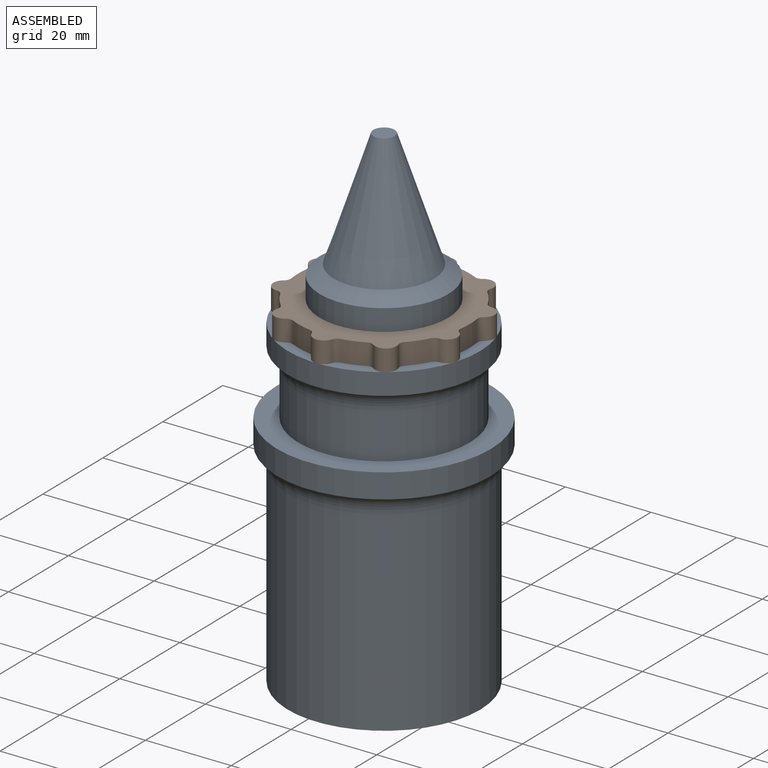
[diagram: assembled view]
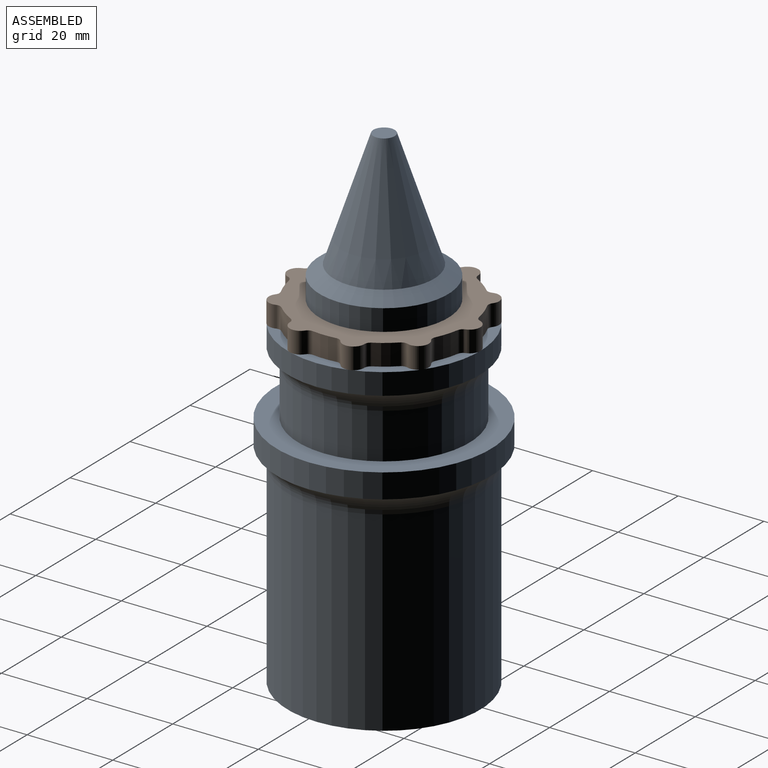
[diagram: assembled view, second angle]
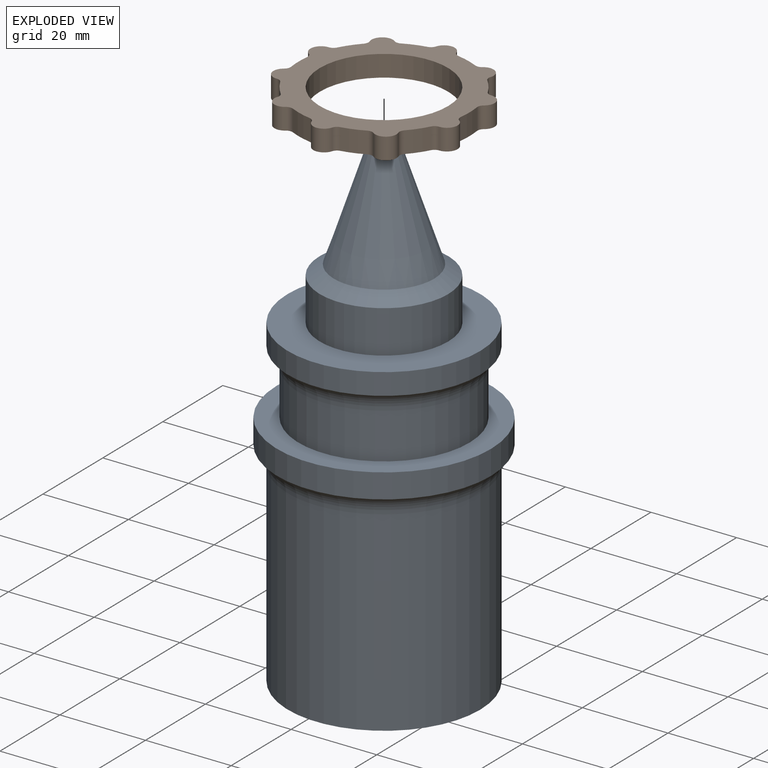
[diagram: exploded view]
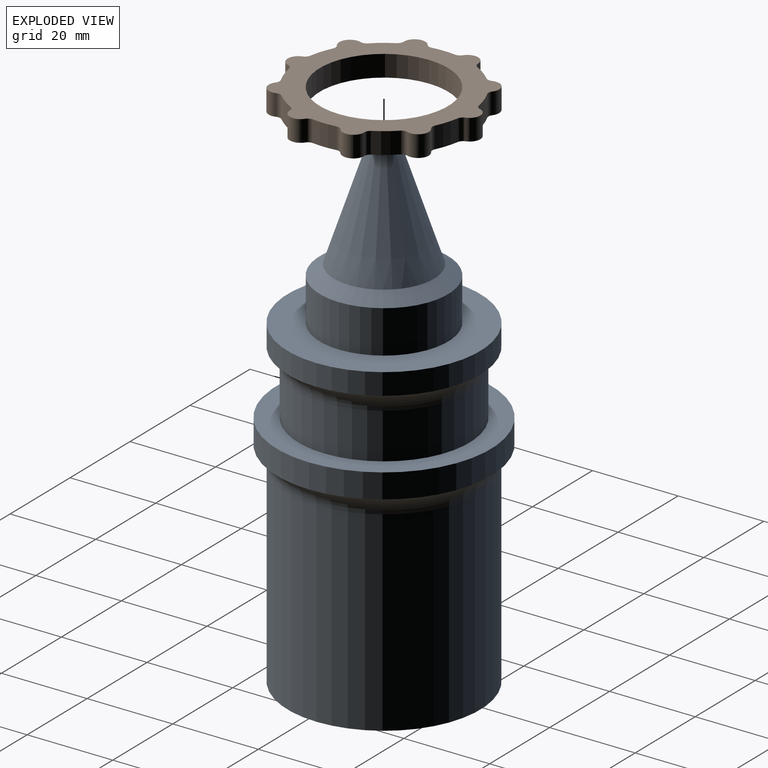
[diagram: exploded view, second angle]
ASSEMBLY  parts=2 mates=2
PART A: 22 faces, bbox 59.5x59.5x115.7 mm
  f0: cylinder r=25mm len=50mm, axis (0,0,-1), area 895.4mm2, adj f1,f12
  f1: plane 50x50mm, normal (0,0,1), area 706.9mm2, adj f0,f2
  f2: cylinder r=20mm len=40mm, axis (0,0,-1), area 1340.8mm2, adj f1,f5
  f3: cylinder r=22.5mm len=45mm, axis (0,0,-1), area 706.9mm2, adj f4,f5
  f4: plane 45x45mm, normal (0,0,1), area 883.6mm2, adj f3,f6
  f5: torus R=25mm, axis (0,0,1), area 686.4mm2, adj f2,f3
  f6: cylinder r=15mm len=30mm, axis (0,0,-1), area 942.5mm2, adj f4,f11
  f7: plane 5x5mm, normal (0,0,1), area 19.6mm2, adj f8
  f8: cone r=12.5mm half-angle=18.4deg, axis (0,0,-1), area 1300mm2, adj f7,f11
  f9: cylinder r=22.5mm len=45.67mm, axis (0,0,1), area 6456.4mm2, adj f10,f12
  f10: plane 45x45mm, normal (0,0,-1), area 1099.6mm2, adj f9,f18
  f11: cone r=11.71mm half-angle=54.2deg, axis (0,0,-1), area 340.4mm2, adj f6,f8
  f12: torus R=27.5mm, axis (0,0,1), area 768.7mm2, adj f0,f9
  f13: torus R=27.5mm, axis (0,0,1), area 2.4mm2, adj f14,f18
  f14: plane 25x25mm, normal (0,0,-1), area 176.7mm2, adj f13,f15
  f15: cylinder r=10mm len=20mm, axis (0,0,-1), area 942.5mm2, adj f14,f21
  f16: cylinder r=5mm len=14.37mm, axis (0,0,-1), area 451.4mm2, adj f20,f21
  f17: cone r=3.01mm half-angle=18.4deg, axis (0,0,-1), area 104.5mm2, adj f19
  f18: cylinder r=12.5mm len=45.67mm, axis (0,0,1), area 3586.9mm2, adj f10,f13
  f19: cone r=5.86mm half-angle=54.2deg, axis (0,0,-1), area 40.7mm2, adj f17,f20
  f20: torus R=4mm, axis (0,0,1), area 28.9mm2, adj f16,f19
  f21: torus R=5mm, axis (0,0,1), area 403.8mm2, adj f15,f16
PART B: 43 faces, bbox 43x45x5 mm
  f0: cylinder r=1.5mm len=5mm, axis (0,0,-1), area 8.2mm2, adj f1,f39,f40,f41
  f1: cylinder r=20mm len=5.12mm, axis (0,0,-1), area 27mm2, adj f0,f2,f40,f41
  f2: cylinder r=1.5mm len=5mm, axis (0,0,-1), area 8.2mm2, adj f1,f3,f40,f41
  f3: cylinder r=2.5mm len=5mm, axis (0,0,-1), area 31.9mm2, adj f2,f4,f40,f41
  f4: cylinder r=1.5mm len=5mm, axis (0,0,-1), area 8.2mm2, adj f3,f5,f40,f41
  f5: cylinder r=20mm len=5.12mm, axis (0,0,-1), area 27mm2, adj f4,f6,f40,f41
  f6: cylinder r=1.5mm len=5mm, axis (0,0,-1), area 8.2mm2, adj f5,f7,f40,f41
  f7: cylinder r=2.5mm len=5mm, axis (0,0,-1), area 31.9mm2, adj f6,f8,f40,f41
  f8: cylinder r=1.5mm len=5mm, axis (0,0,-1), area 8.2mm2, adj f7,f9,f40,f41
  f9: cylinder r=20mm len=5mm, axis (0,0,-1), area 27mm2, adj f8,f10,f40,f41
  f10: cylinder r=1.5mm len=5mm, axis (0,0,-1), area 8.2mm2, adj f9,f11,f40,f41
  f11: cylinder r=2.5mm len=5mm, axis (0,0,-1), area 31.9mm2, adj f10,f12,f40,f41
  f12: cylinder r=1.5mm len=5mm, axis (0,0,-1), area 8.2mm2, adj f11,f13,f40,f41
  f13: cylinder r=20mm len=5.39mm, axis (0,0,-1), area 27mm2, adj f12,f14,f40,f41
  f14: cylinder r=1.5mm len=5mm, axis (0,0,-1), area 8.2mm2, adj f13,f15,f40,f41
  f15: cylinder r=2.5mm len=5mm, axis (0,0,-1), area 31.9mm2, adj f14,f16,f40,f41
  f16: cylinder r=1.5mm len=5mm, axis (0,0,-1), area 8.2mm2, adj f15,f17,f40,f41
  f17: cylinder r=20mm len=5mm, axis (0,0,-1), area 27mm2, adj f16,f18,f40,f41
  f18: cylinder r=1.5mm len=5mm, axis (0,0,-1), area 8.2mm2, adj f17,f19,f40,f41
  f19: cylinder r=2.5mm len=5mm, axis (0,0,-1), area 31.9mm2, adj f18,f20,f40,f41
  f20: cylinder r=1.5mm len=5mm, axis (0,0,-1), area 8.2mm2, adj f19,f21,f40,f41
  f21: cylinder r=20mm len=5.12mm, axis (0,0,-1), area 27mm2, adj f20,f22,f40,f41
  f22: cylinder r=1.5mm len=5mm, axis (0,0,-1), area 8.2mm2, adj f21,f23,f40,f41
  f23: cylinder r=2.5mm len=5mm, axis (0,0,-1), area 31.9mm2, adj f22,f24,f40,f41
  f24: cylinder r=1.5mm len=5mm, axis (0,0,-1), area 8.2mm2, adj f23,f25,f40,f41
  f25: cylinder r=20mm len=5.12mm, axis (0,0,-1), area 27mm2, adj f24,f26,f40,f41
  f26: cylinder r=1.5mm len=5mm, axis (0,0,-1), area 8.2mm2, adj f25,f27,f40,f41
  f27: cylinder r=2.5mm len=5mm, axis (0,0,-1), area 31.9mm2, adj f26,f28,f40,f41
  f28: cylinder r=1.5mm len=5mm, axis (0,0,-1), area 8.2mm2, adj f27,f29,f40,f41
  f29: cylinder r=20mm len=5mm, axis (0,0,-1), area 27mm2, adj f28,f30,f40,f41
  f30: cylinder r=1.5mm len=5mm, axis (0,0,-1), area 8.2mm2, adj f29,f31,f40,f41
  f31: cylinder r=2.5mm len=5mm, axis (0,0,-1), area 31.9mm2, adj f30,f32,f40,f41
  f32: cylinder r=1.5mm len=5mm, axis (0,0,-1), area 8.2mm2, adj f31,f33,f40,f41
  f33: cylinder r=20mm len=5.39mm, axis (0,0,-1), area 27mm2, adj f32,f34,f40,f41
  f34: cylinder r=1.5mm len=5mm, axis (0,0,-1), area 8.2mm2, adj f33,f35,f40,f41
  f35: cylinder r=2.5mm len=5mm, axis (0,0,-1), area 31.9mm2, adj f34,f36,f40,f41
  f36: cylinder r=1.5mm len=5mm, axis (0,0,-1), area 8.2mm2, adj f35,f37,f40,f41
  f37: cylinder r=20mm len=5mm, axis (0,0,-1), area 27mm2, adj f36,f38,f40,f41
  f38: cylinder r=1.5mm len=5mm, axis (0,0,-1), area 8.2mm2, adj f37,f39,f40,f41
  f39: cylinder r=2.5mm len=5mm, axis (0,0,-1), area 31.9mm2, adj f0,f38,f40,f41
  f40: plane 45x43.04mm, normal (0,0,1), area 654.5mm2, adj f0,f1,f2,f3,f4,f5,f6,f7
  f41: plane 45x43.04mm, normal (0,0,-1), area 654.5mm2, adj f0,f1,f2,f3,f4,f5,f6,f7
  f42: cylinder r=15mm len=30mm, axis (0,0,1), area 471.2mm2, adj f40,f41
PLACE A t=(4.53,-55.49,124.2)mm
PLACE B t=(4.53,-55.49,149.9)mm
MATE fastened B.f42 <-> A.f0  axis (0,0,-1) through (4.53,-55.49,149.9)mm
MATE cylindrical A.f6 <-> B.f42  axis (0,0,-1) through (4.53,-55.49,149.9)mm
